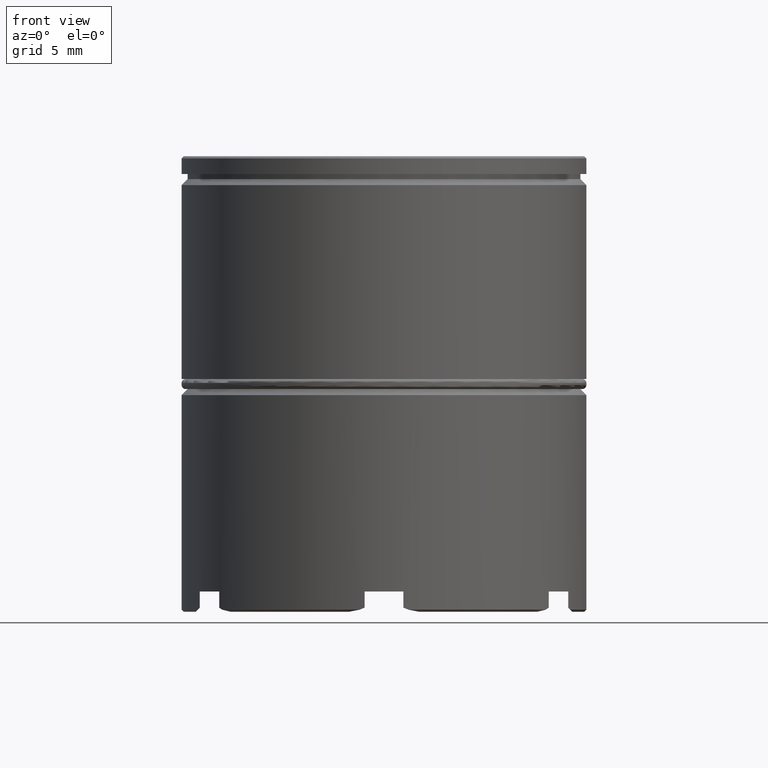
[diagram: clean part render]
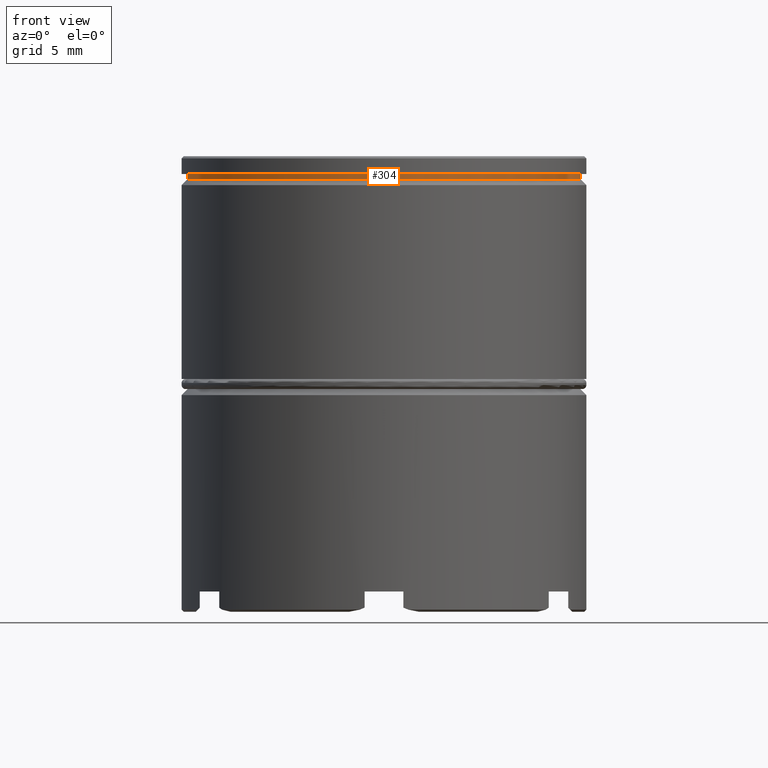
[diagram: same view with one face highlighted and labeled with its STEP entity id]
A machine part, front view. The second image highlights one B-rep face of the part: STEP entity #304.
In plain terms, the highlighted cylindrical surface (partial cylindrical patch) has radius 9.7 mm, axis along (-0, -0, 1).
Its self-contained STEP definition (entity closure, byte-faithful):
#2 = CARTESIAN_POINT ( 'NONE',  ( -9.700000000000001066, 1.187907395172932594E-15, 0.000000000000000000 ) ) ;
#97 = EDGE_CURVE ( 'NONE', #1557, #813, #1147, .T. ) ;
#104 = DIRECTION ( 'NONE',  ( -0.000000000000000000, -0.000000000000000000, 1.000000000000000000 ) ) ;
#121 = EDGE_CURVE ( 'NONE', #1290, #813, #165, .T. ) ;
#162 = CARTESIAN_POINT ( 'NONE',  ( 9.700000000000001066, 0.000000000000000000, -0.8749999999999998890 ) ) ;
#165 = CIRCLE ( 'NONE', #556, 9.700000000000001066 ) ;
#210 = AXIS2_PLACEMENT_3D ( 'NONE', #911, #1063, #1293 ) ;
#282 = DIRECTION ( 'NONE',  ( 1.000000000000000000, 0.000000000000000000, 0.000000000000000000 ) ) ;
#292 = CARTESIAN_POINT ( 'NONE',  ( 0.000000000000000000, 0.000000000000000000, 0.000000000000000000 ) ) ;
#293 = AXIS2_PLACEMENT_3D ( 'NONE', #292, #1425, #282 ) ;
#304 = ADVANCED_FACE ( 'NONE', ( #1037 ), #1176, .T. ) ;
#315 = CARTESIAN_POINT ( 'NONE',  ( -9.700000000000001066, 1.187907395172932594E-15, -1.125000000000000222 ) ) ;
#334 = DIRECTION ( 'NONE',  ( -0.000000000000000000, -0.000000000000000000, 1.000000000000000000 ) ) ;
#358 = ORIENTED_EDGE ( 'NONE', *, *, #121, .F. ) ;
#465 = CARTESIAN_POINT ( 'NONE',  ( -9.700000000000001066, 1.187907395172932594E-15, -0.8749999999999998890 ) ) ;
#498 = CARTESIAN_POINT ( 'NONE',  ( 9.700000000000001066, 0.000000000000000000, 0.000000000000000000 ) ) ;
#552 = ORIENTED_EDGE ( 'NONE', *, *, #1233, .F. ) ;
#556 = AXIS2_PLACEMENT_3D ( 'NONE', #1121, #334, #899 ) ;
#561 = CIRCLE ( 'NONE', #210, 9.700000000000001066 ) ;
#648 = VECTOR ( 'NONE', #104, 1000.000000000000000 ) ;
#775 = ORIENTED_EDGE ( 'NONE', *, *, #97, .T. ) ;
#776 = EDGE_CURVE ( 'NONE', #1494, #1557, #561, .T. ) ;
#778 = EDGE_LOOP ( 'NONE', ( #552, #1440, #775, #358 ) ) ;
#813 = VERTEX_POINT ( 'NONE', #162 ) ;
#839 = VECTOR ( 'NONE', #1274, 1000.000000000000000 ) ;
#899 = DIRECTION ( 'NONE',  ( 1.000000000000000000, 0.000000000000000000, 0.000000000000000000 ) ) ;
#911 = CARTESIAN_POINT ( 'NONE',  ( 0.000000000000000000, 0.000000000000000000, -1.125000000000000222 ) ) ;
#1037 = FACE_OUTER_BOUND ( 'NONE', #778, .T. ) ;
#1063 = DIRECTION ( 'NONE',  ( -0.000000000000000000, -0.000000000000000000, 1.000000000000000000 ) ) ;
#1121 = CARTESIAN_POINT ( 'NONE',  ( 0.000000000000000000, 0.000000000000000000, -0.8749999999999998890 ) ) ;
#1147 = LINE ( 'NONE', #498, #839 ) ;
#1176 = CYLINDRICAL_SURFACE ( 'NONE', #293, 9.700000000000001066 ) ;
#1233 = EDGE_CURVE ( 'NONE', #1494, #1290, #1256, .T. ) ;
#1256 = LINE ( 'NONE', #2, #648 ) ;
#1274 = DIRECTION ( 'NONE',  ( -0.000000000000000000, -0.000000000000000000, 1.000000000000000000 ) ) ;
#1290 = VERTEX_POINT ( 'NONE', #465 ) ;
#1293 = DIRECTION ( 'NONE',  ( 1.000000000000000000, 0.000000000000000000, 0.000000000000000000 ) ) ;
#1353 = CARTESIAN_POINT ( 'NONE',  ( 9.700000000000001066, 0.000000000000000000, -1.125000000000000222 ) ) ;
#1425 = DIRECTION ( 'NONE',  ( -0.000000000000000000, -0.000000000000000000, 1.000000000000000000 ) ) ;
#1440 = ORIENTED_EDGE ( 'NONE', *, *, #776, .T. ) ;
#1494 = VERTEX_POINT ( 'NONE', #315 ) ;
#1557 = VERTEX_POINT ( 'NONE', #1353 ) ;